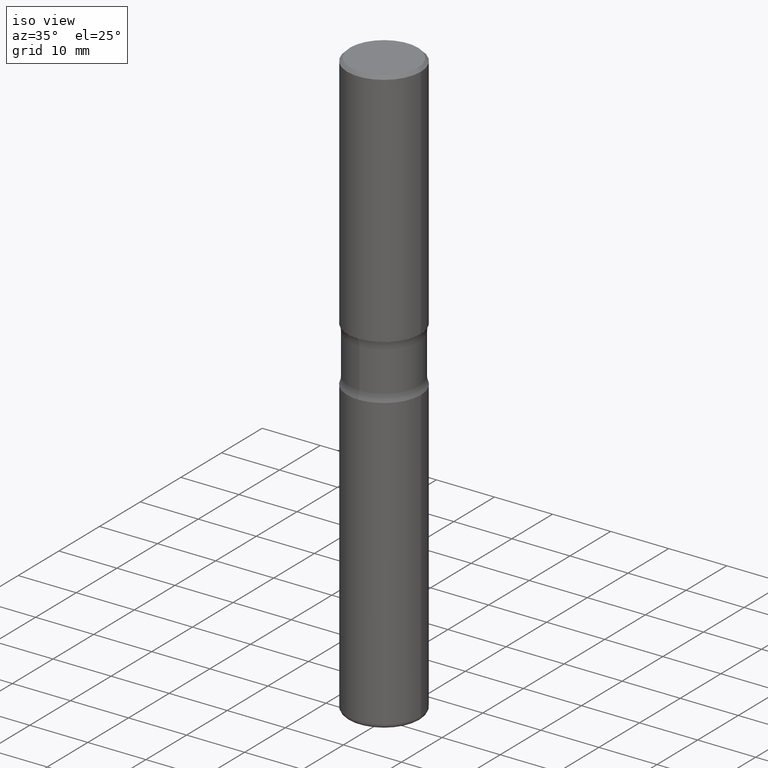
[diagram: clean part render]
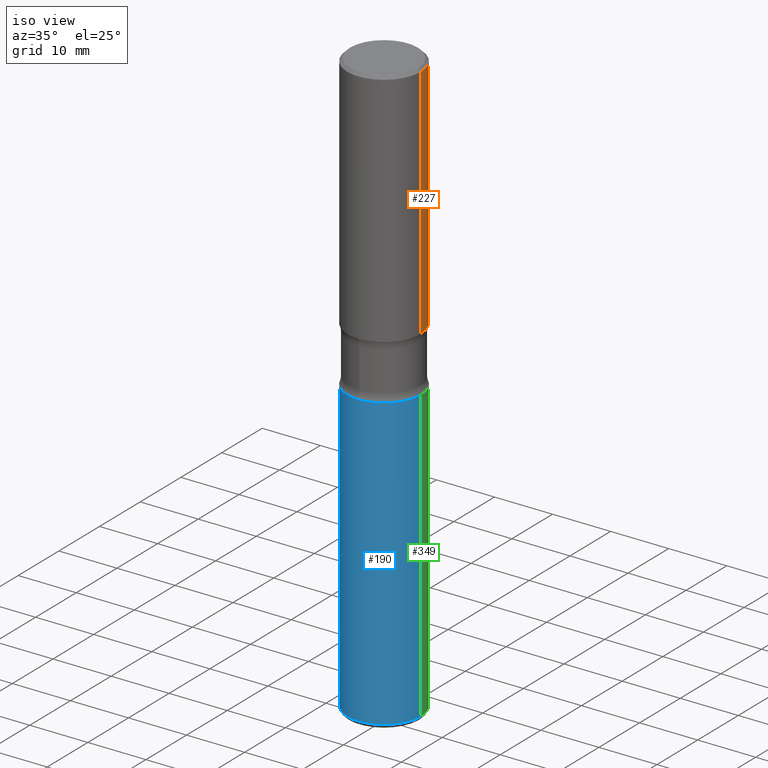
[diagram: same view with three faces highlighted in distinct colors, each labeled with its STEP entity id]
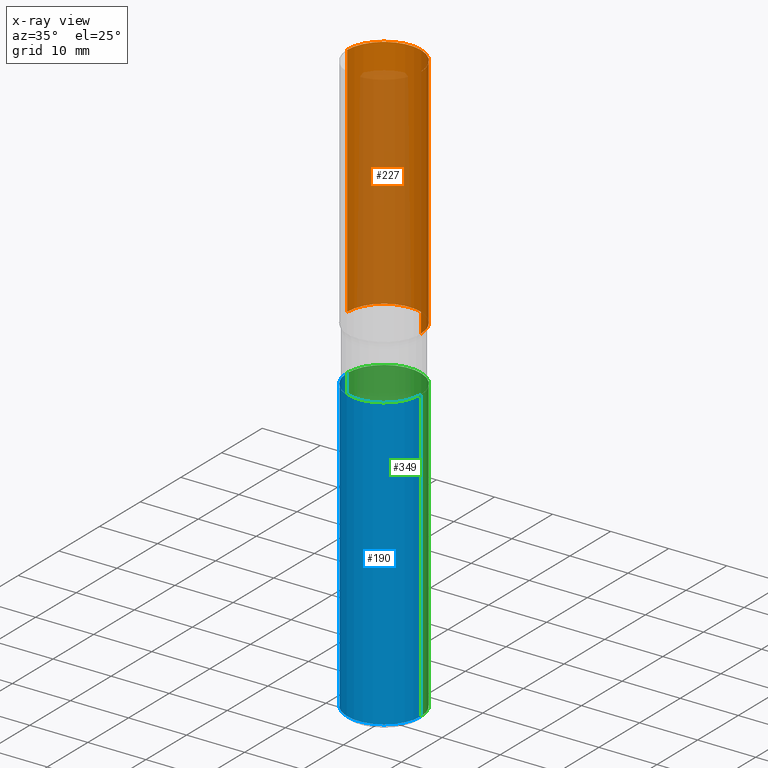
[diagram: x-ray of the same camera — body ghosted, the three highlighted faces saturated]
A machine part, iso view with three faces highlighted in distinct colors.
The next image is the same camera in x-ray (body ghosted, the three faces saturated) — at least one of them is partly hidden behind the body in this view.
Their STEP definitions:

[orange] entity #227 — the highlighted cylindrical surface (partial cylindrical patch) has radius 6.35 mm, axis along (-0, 0, 1).
#11 = CARTESIAN_POINT ( 'NONE',  ( -0.2500000000000003331, 1.675911042644705746E-15, -0.02000000000000013572 ) ) ;
#43 = CARTESIAN_POINT ( 'NONE',  ( 0.000000000000000000, 0.000000000000000000, 0.000000000000000000 ) ) ;
#44 = DIRECTION ( 'NONE',  ( 1.000000000000000000, -6.982962677686265922E-15, 4.876176775795935232E-29 ) ) ;
#93 = DIRECTION ( 'NONE',  ( -2.445468806185136597E-29, 3.491481338843145583E-15, 1.000000000000000000 ) ) ;
#109 = AXIS2_PLACEMENT_3D ( 'NONE', #448, #216, #126 ) ;
#126 = DIRECTION ( 'NONE',  ( 1.000000000000000000, -6.982962677686266711E-15, 0.000000000000000000 ) ) ;
#132 = EDGE_CURVE ( 'NONE', #382, #245, #560, .T. ) ;
#155 = AXIS2_PLACEMENT_3D ( 'NONE', #43, #314, #44 ) ;
#159 = DIRECTION ( 'NONE',  ( -2.445468806185136877E-29, 3.491481338843145188E-15, 1.000000000000000000 ) ) ;
#165 = VECTOR ( 'NONE', #159, 39.37007874015748143 ) ;
#166 = ORIENTED_EDGE ( 'NONE', *, *, #476, .T. ) ;
#167 = CARTESIAN_POINT ( 'NONE',  ( 0.2500000000000004996, -1.745740669421570030E-15, 1.219044193948986190E-29 ) ) ;
#172 = FACE_OUTER_BOUND ( 'NONE', #521, .T. ) ;
#182 = CARTESIAN_POINT ( 'NONE',  ( 0.2500000000000005551, -7.419397845041682046E-15, -1.624999999999999778 ) ) ;
#192 = CARTESIAN_POINT ( 'NONE',  ( 4.890937612370306439E-31, -6.982962677686338448E-17, -0.02000000000000013572 ) ) ;
#215 = CARTESIAN_POINT ( 'NONE',  ( 0.2500000000000003331, -1.784954126219748555E-15, -0.02000000000000013572 ) ) ;
#216 = DIRECTION ( 'NONE',  ( -2.445468806185136597E-29, 3.491481338843145583E-15, 1.000000000000000000 ) ) ;
#224 = VERTEX_POINT ( 'NONE', #531 ) ;
#227 = ADVANCED_FACE ( 'NONE', ( #172 ), #409, .T. ) ;
#245 = VERTEX_POINT ( 'NONE', #215 ) ;
#249 = CIRCLE ( 'NONE', #109, 0.2500000000000005551 ) ;
#250 = CARTESIAN_POINT ( 'NONE',  ( -0.2500000000000004996, 1.776356839400254015E-15, -1.229733772563728688E-29 ) ) ;
#314 = DIRECTION ( 'NONE',  ( -2.445468806185136597E-29, 3.491481338843145583E-15, 1.000000000000000000 ) ) ;
#323 = AXIS2_PLACEMENT_3D ( 'NONE', #192, #93, #384 ) ;
#328 = EDGE_CURVE ( 'NONE', #245, #338, #398, .T. ) ;
#333 = ORIENTED_EDGE ( 'NONE', *, *, #328, .F. ) ;
#337 = LINE ( 'NONE', #250, #165 ) ;
#338 = VERTEX_POINT ( 'NONE', #11 ) ;
#348 = ORIENTED_EDGE ( 'NONE', *, *, #132, .F. ) ;
#382 = VERTEX_POINT ( 'NONE', #182 ) ;
#384 = DIRECTION ( 'NONE',  ( 1.000000000000000000, -6.982962677686266711E-15, 0.000000000000000000 ) ) ;
#397 = VECTOR ( 'NONE', #467, 39.37007874015748143 ) ;
#398 = CIRCLE ( 'NONE', #323, 0.2500000000000003331 ) ;
#409 = CYLINDRICAL_SURFACE ( 'NONE', #155, 0.2500000000000004996 ) ;
#448 = CARTESIAN_POINT ( 'NONE',  ( 3.973886810050846409E-29, -5.673657175620110635E-15, -1.624999999999999778 ) ) ;
#467 = DIRECTION ( 'NONE',  ( -2.445468806185136877E-29, 3.491481338843145188E-15, 1.000000000000000000 ) ) ;
#476 = EDGE_CURVE ( 'NONE', #224, #338, #337, .T. ) ;
#503 = ORIENTED_EDGE ( 'NONE', *, *, #540, .T. ) ;
#521 = EDGE_LOOP ( 'NONE', ( #503, #166, #333, #348 ) ) ;
#531 = CARTESIAN_POINT ( 'NONE',  ( -0.2500000000000005551, -1.095386561798230783E-15, -1.624999999999999778 ) ) ;
#540 = EDGE_CURVE ( 'NONE', #382, #224, #249, .T. ) ;
#560 = LINE ( 'NONE', #167, #397 ) ;

[blue] entity #190 — the highlighted cylindrical surface (partial cylindrical patch) has radius 6.35 mm, axis along (-0, 0, 1).
#20 = VERTEX_POINT ( 'NONE', #300 ) ;
#27 = CARTESIAN_POINT ( 'NONE',  ( 4.890937612370274875E-29, -6.982962677686292743E-15, -2.000000000000000444 ) ) ;
#48 = CYLINDRICAL_SURFACE ( 'NONE', #87, 0.2500000000000005551 ) ;
#51 = EDGE_CURVE ( 'NONE', #20, #292, #307, .T. ) ;
#72 = DIRECTION ( 'NONE',  ( 1.000000000000000000, -6.982962677686268288E-15, 0.000000000000000000 ) ) ;
#86 = FACE_OUTER_BOUND ( 'NONE', #278, .T. ) ;
#87 = AXIS2_PLACEMENT_3D ( 'NONE', #270, #217, #364 ) ;
#142 = LINE ( 'NONE', #196, #351 ) ;
#169 = AXIS2_PLACEMENT_3D ( 'NONE', #27, #465, #72 ) ;
#190 = ADVANCED_FACE ( 'NONE', ( #86 ), #48, .T. ) ;
#196 = CARTESIAN_POINT ( 'NONE',  ( 0.2500000000000005551, -1.745740669421570622E-15, 1.219044193948986471E-29 ) ) ;
#206 = CARTESIAN_POINT ( 'NONE',  ( 0.2500000000000004996, -8.728703347107863365E-15, -2.000000000000000444 ) ) ;
#209 = CARTESIAN_POINT ( 'NONE',  ( 9.708511160554993993E-29, -1.386118091520729054E-14, -3.970000000000000639 ) ) ;
#217 = DIRECTION ( 'NONE',  ( -2.445468806185136597E-29, 3.491481338843145583E-15, 1.000000000000000000 ) ) ;
#222 = LINE ( 'NONE', #225, #528 ) ;
#225 = CARTESIAN_POINT ( 'NONE',  ( -0.2500000000000005551, 1.776356839400254409E-15, -1.229733772563729108E-29 ) ) ;
#237 = DIRECTION ( 'NONE',  ( -2.445468806185136877E-29, 3.491481338843145188E-15, 1.000000000000000000 ) ) ;
#241 = ORIENTED_EDGE ( 'NONE', *, *, #513, .F. ) ;
#248 = AXIS2_PLACEMENT_3D ( 'NONE', #209, #558, #520 ) ;
#270 = CARTESIAN_POINT ( 'NONE',  ( 0.000000000000000000, 0.000000000000000000, 0.000000000000000000 ) ) ;
#278 = EDGE_LOOP ( 'NONE', ( #241, #539, #350, #391 ) ) ;
#286 = CIRCLE ( 'NONE', #169, 0.2500000000000004996 ) ;
#292 = VERTEX_POINT ( 'NONE', #413 ) ;
#293 = EDGE_CURVE ( 'NONE', #292, #451, #142, .T. ) ;
#299 = VERTEX_POINT ( 'NONE', #455 ) ;
#300 = CARTESIAN_POINT ( 'NONE',  ( -0.2500000000000007216, -1.208482407580703534E-14, -3.970000000000000639 ) ) ;
#307 = CIRCLE ( 'NONE', #248, 0.2500000000000005551 ) ;
#350 = ORIENTED_EDGE ( 'NONE', *, *, #293, .T. ) ;
#351 = VECTOR ( 'NONE', #237, 39.37007874015748143 ) ;
#364 = DIRECTION ( 'NONE',  ( 1.000000000000000000, -6.982962677686266711E-15, 4.876176775795935232E-29 ) ) ;
#391 = ORIENTED_EDGE ( 'NONE', *, *, #453, .F. ) ;
#403 = DIRECTION ( 'NONE',  ( -2.445468806185136877E-29, 3.491481338843145188E-15, 1.000000000000000000 ) ) ;
#413 = CARTESIAN_POINT ( 'NONE',  ( 0.2500000000000007216, -1.560692158462886037E-14, -3.970000000000000639 ) ) ;
#451 = VERTEX_POINT ( 'NONE', #206 ) ;
#453 = EDGE_CURVE ( 'NONE', #299, #451, #286, .T. ) ;
#455 = CARTESIAN_POINT ( 'NONE',  ( -0.2500000000000004996, -8.645714957046537626E-15, -2.000000000000000444 ) ) ;
#465 = DIRECTION ( 'NONE',  ( -2.445468806185136597E-29, 3.491481338843145583E-15, 1.000000000000000000 ) ) ;
#513 = EDGE_CURVE ( 'NONE', #20, #299, #222, .T. ) ;
#520 = DIRECTION ( 'NONE',  ( 1.000000000000000000, -6.982962677686270655E-15, 0.000000000000000000 ) ) ;
#528 = VECTOR ( 'NONE', #403, 39.37007874015748143 ) ;
#539 = ORIENTED_EDGE ( 'NONE', *, *, #51, .T. ) ;
#558 = DIRECTION ( 'NONE',  ( -2.445468806185136597E-29, 3.491481338843145583E-15, 1.000000000000000000 ) ) ;

[green] entity #349 — the highlighted cylindrical surface (partial cylindrical patch) has radius 6.35 mm, axis along (-0, 0, 1).
#18 = EDGE_CURVE ( 'NONE', #292, #20, #105, .T. ) ;
#20 = VERTEX_POINT ( 'NONE', #300 ) ;
#34 = CARTESIAN_POINT ( 'NONE',  ( 4.890937612370274875E-29, -6.982962677686292743E-15, -2.000000000000000444 ) ) ;
#37 = DIRECTION ( 'NONE',  ( -2.445468806185136597E-29, 3.491481338843145583E-15, 1.000000000000000000 ) ) ;
#57 = FACE_OUTER_BOUND ( 'NONE', #414, .T. ) ;
#75 = ORIENTED_EDGE ( 'NONE', *, *, #464, .F. ) ;
#105 = CIRCLE ( 'NONE', #487, 0.2500000000000005551 ) ;
#142 = LINE ( 'NONE', #196, #351 ) ;
#153 = DIRECTION ( 'NONE',  ( 1.000000000000000000, -6.982962677686268288E-15, 0.000000000000000000 ) ) ;
#196 = CARTESIAN_POINT ( 'NONE',  ( 0.2500000000000005551, -1.745740669421570622E-15, 1.219044193948986471E-29 ) ) ;
#206 = CARTESIAN_POINT ( 'NONE',  ( 0.2500000000000004996, -8.728703347107863365E-15, -2.000000000000000444 ) ) ;
#222 = LINE ( 'NONE', #225, #528 ) ;
#225 = CARTESIAN_POINT ( 'NONE',  ( -0.2500000000000005551, 1.776356839400254409E-15, -1.229733772563729108E-29 ) ) ;
#237 = DIRECTION ( 'NONE',  ( -2.445468806185136877E-29, 3.491481338843145188E-15, 1.000000000000000000 ) ) ;
#252 = DIRECTION ( 'NONE',  ( 1.000000000000000000, -6.982962677686270655E-15, 0.000000000000000000 ) ) ;
#254 = CARTESIAN_POINT ( 'NONE',  ( 9.708511160554993993E-29, -1.386118091520729054E-14, -3.970000000000000639 ) ) ;
#284 = ORIENTED_EDGE ( 'NONE', *, *, #293, .F. ) ;
#287 = CARTESIAN_POINT ( 'NONE',  ( 0.000000000000000000, 0.000000000000000000, 0.000000000000000000 ) ) ;
#292 = VERTEX_POINT ( 'NONE', #413 ) ;
#293 = EDGE_CURVE ( 'NONE', #292, #451, #142, .T. ) ;
#299 = VERTEX_POINT ( 'NONE', #455 ) ;
#300 = CARTESIAN_POINT ( 'NONE',  ( -0.2500000000000007216, -1.208482407580703534E-14, -3.970000000000000639 ) ) ;
#329 = DIRECTION ( 'NONE',  ( 1.000000000000000000, -6.982962677686266711E-15, 4.876176775795935232E-29 ) ) ;
#339 = ORIENTED_EDGE ( 'NONE', *, *, #18, .T. ) ;
#349 = ADVANCED_FACE ( 'NONE', ( #57 ), #454, .T. ) ;
#351 = VECTOR ( 'NONE', #237, 39.37007874015748143 ) ;
#403 = DIRECTION ( 'NONE',  ( -2.445468806185136877E-29, 3.491481338843145188E-15, 1.000000000000000000 ) ) ;
#413 = CARTESIAN_POINT ( 'NONE',  ( 0.2500000000000007216, -1.560692158462886037E-14, -3.970000000000000639 ) ) ;
#414 = EDGE_LOOP ( 'NONE', ( #339, #472, #75, #284 ) ) ;
#421 = DIRECTION ( 'NONE',  ( -2.445468806185136597E-29, 3.491481338843145583E-15, 1.000000000000000000 ) ) ;
#451 = VERTEX_POINT ( 'NONE', #206 ) ;
#454 = CYLINDRICAL_SURFACE ( 'NONE', #536, 0.2500000000000005551 ) ;
#455 = CARTESIAN_POINT ( 'NONE',  ( -0.2500000000000004996, -8.645714957046537626E-15, -2.000000000000000444 ) ) ;
#464 = EDGE_CURVE ( 'NONE', #451, #299, #548, .T. ) ;
#472 = ORIENTED_EDGE ( 'NONE', *, *, #513, .T. ) ;
#487 = AXIS2_PLACEMENT_3D ( 'NONE', #254, #37, #252 ) ;
#507 = DIRECTION ( 'NONE',  ( -2.445468806185136597E-29, 3.491481338843145583E-15, 1.000000000000000000 ) ) ;
#513 = EDGE_CURVE ( 'NONE', #20, #299, #222, .T. ) ;
#523 = AXIS2_PLACEMENT_3D ( 'NONE', #34, #507, #153 ) ;
#528 = VECTOR ( 'NONE', #403, 39.37007874015748143 ) ;
#536 = AXIS2_PLACEMENT_3D ( 'NONE', #287, #421, #329 ) ;
#548 = CIRCLE ( 'NONE', #523, 0.2500000000000004996 ) ;